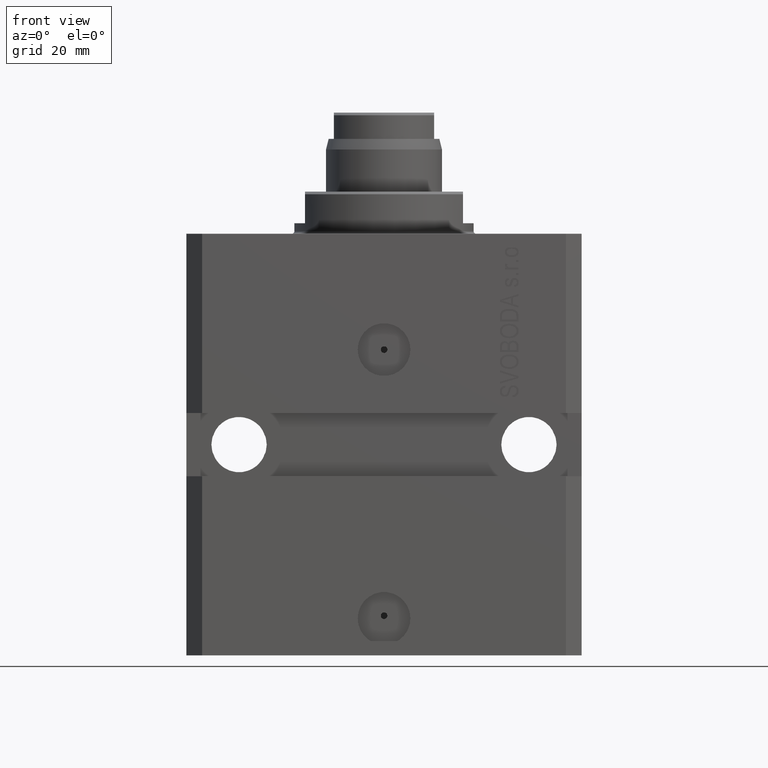
[diagram: clean part render]
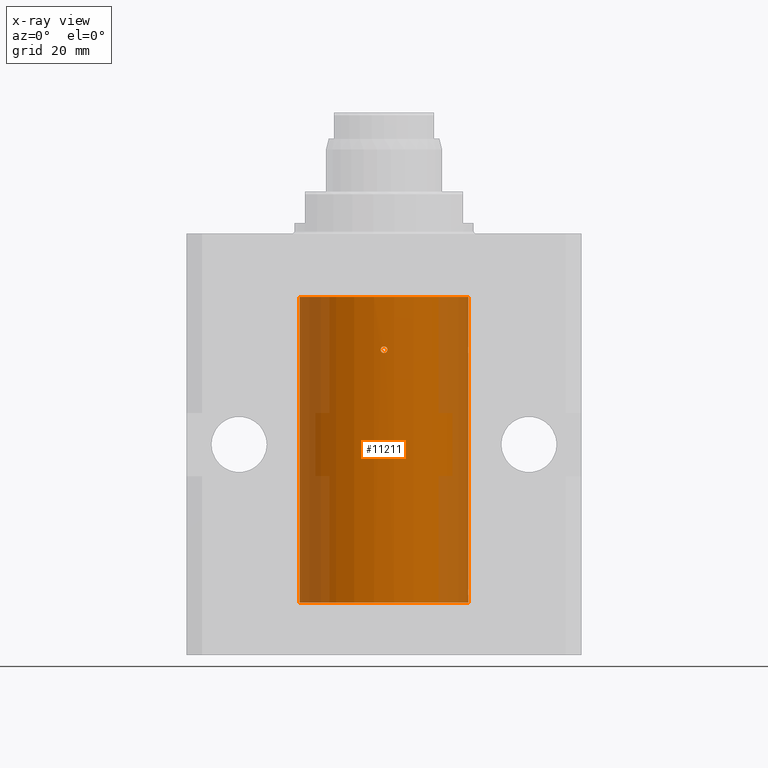
[diagram: x-ray — body ghosted, one internal face saturated and labeled with its STEP entity id]
A machine part, front view, then the same camera in x-ray: the body is ghosted and one INTERNAL B-rep face — a face not visible from any outside direction — is saturated and labeled: STEP entity #11211.
In plain terms, the highlighted cylindrical surface (partial cylindrical patch) has radius 16 mm, axis along (0, 0, 1).
Its self-contained STEP definition (entity closure, byte-faithful):
#355 = CARTESIAN_POINT ( 'NONE',  ( 16.00000000000000000, 6.512442293616765687E-16, -22.62500000000000000 ) ) ;
#490 = LINE ( 'NONE', #27708, #11838 ) ;
#1217 = CARTESIAN_POINT ( 'NONE',  ( 15.98778830858101507, -0.6250000000002121636, -22.00000000000000000 ) ) ;
#1373 = EDGE_CURVE ( 'NONE', #11343, #28451, #29028, .T. ) ;
#1651 = CARTESIAN_POINT ( 'NONE',  ( 15.99071289786271599, -0.5571474671815412893, -21.67319665488819425 ) ) ;
#1946 = ORIENTED_EDGE ( 'NONE', *, *, #40736, .F. ) ;
#2426 = CARTESIAN_POINT ( 'NONE',  ( 15.98778830858101685, -0.6250000000001221245, -68.00000000000000000 ) ) ;
#2802 = CIRCLE ( 'NONE', #34577, 16.00000000000000000 ) ;
#2966 = VERTEX_POINT ( 'NONE', #37809 ) ;
#3079 = CARTESIAN_POINT ( 'NONE',  ( 0.3261757727946462126, -15.99709188868944665, -22.55754407379585302 ) ) ;
#3298 = CARTESIAN_POINT ( 'NONE',  ( 0.5570815292660692419, -15.99071604712191963, -22.32696513381955583 ) ) ;
#3402 = ORIENTED_EDGE ( 'NONE', *, *, #15366, .F. ) ;
#3583 = DIRECTION ( 'NONE',  ( -0.000000000000000000, -0.000000000000000000, 1.000000000000000000 ) ) ;
#3662 = CARTESIAN_POINT ( 'NONE',  ( 15.99070553365076641, -0.5573460204200235690, -22.32646897863008206 ) ) ;
#4092 = CARTESIAN_POINT ( 'NONE',  ( 15.98778830858101685, -0.6250000000002121636, -22.16481193282333351 ) ) ;
#4586 = DIRECTION ( 'NONE',  ( -0.000000000000000000, -0.000000000000000000, 1.000000000000000000 ) ) ;
#4974 = CARTESIAN_POINT ( 'NONE',  ( 15.98778830858102040, -0.6250000000002122746, -21.83501479319281913 ) ) ;
#5055 = DIRECTION ( 'NONE',  ( 1.000000000000000000, 0.000000000000000000, 0.000000000000000000 ) ) ;
#5314 = B_SPLINE_CURVE_WITH_KNOTS ( 'NONE', 3,
 ( #6646, #9082, #26765, #6423, #43610, #40276, #3079, #3298, #19924, #33399 ),
 .UNSPECIFIED., .F., .F.,
 ( 4, 2, 2, 2, 4 ),
 ( 0.001954221313082809587, 0.002442665727494955884, 0.002931110141907101747, 0.003419554556319247610, 0.003907998970731393906 ),
 .UNSPECIFIED. ) ;
#5397 = CARTESIAN_POINT ( 'NONE',  ( -16.00000000000000000, 1.959434878635764737E-15, -70.00000000000000000 ) ) ;
#5921 = CARTESIAN_POINT ( 'NONE',  ( 0.6250000000000021094, -15.98778830858102040, -21.91740113885281360 ) ) ;
#6281 = CARTESIAN_POINT ( 'NONE',  ( 15.98778830858101507, -0.6250000000002121636, -22.00000000000000000 ) ) ;
#6423 = CARTESIAN_POINT ( 'NONE',  ( -0.3270951065626570009, -15.99707098610709011, -22.55695022494792568 ) ) ;
#6646 = CARTESIAN_POINT ( 'NONE',  ( -0.6250000000034292569, -15.98778830858088540, -21.99999999999968026 ) ) ;
#7154 = EDGE_CURVE ( 'NONE', #30750, #36903, #35780, .T. ) ;
#8337 = AXIS2_PLACEMENT_3D ( 'NONE', #24323, #27645, #37602 ) ;
#9082 = CARTESIAN_POINT ( 'NONE',  ( -0.6250000000001380007, -15.98778830858101685, -22.16313442089298746 ) ) ;
#9166 = CARTESIAN_POINT ( 'NONE',  ( 15.99071289786271954, -0.5571474671814620194, -67.67319665488822977 ) ) ;
#9309 = CARTESIAN_POINT ( 'NONE',  ( -0.6250000000034292569, -15.98778830858088540, -21.99999999999968026 ) ) ;
#9916 = B_SPLINE_CURVE_WITH_KNOTS ( 'NONE', 3,
 ( #18490, #18055, #42618, #1651, #4974, #1217 ),
 .UNSPECIFIED., .F., .F.,
 ( 4, 2, 4 ),
 ( 0.001954221322144344530, 0.002442922366142055192, 0.002931623410139766288 ),
 .UNSPECIFIED. ) ;
#9965 = CARTESIAN_POINT ( 'NONE',  ( 16.00000000000000000, -0.1650734421240358518, -68.62500000000004263 ) ) ;
#10331 = CARTESIAN_POINT ( 'NONE',  ( 15.98778830858101507, -0.6250000000002121636, -22.00000000000000000 ) ) ;
#11211 = ADVANCED_FACE ( 'NONE', ( #38162, #28194 ), #27549, .F. ) ;
#11343 = VERTEX_POINT ( 'NONE', #5397 ) ;
#11404 = DIRECTION ( 'NONE',  ( -0.000000000000000000, -0.000000000000000000, 1.000000000000000000 ) ) ;
#11473 = CARTESIAN_POINT ( 'NONE',  ( 0.6250000000000021094, -15.98778830858102040, -22.00000000000000000 ) ) ;
#11530 = AXIS2_PLACEMENT_3D ( 'NONE', #34836, #11404, #41061 ) ;
#11838 = VECTOR ( 'NONE', #3583, 1000.000000000000000 ) ;
#12244 = DIRECTION ( 'NONE',  ( -0.000000000000000000, -0.000000000000000000, 1.000000000000000000 ) ) ;
#12359 = CARTESIAN_POINT ( 'NONE',  ( -0.3834783201270310360, -15.99551040109984257, -21.49962188967067434 ) ) ;
#12877 = VERTEX_POINT ( 'NONE', #16314 ) ;
#12937 = EDGE_CURVE ( 'NONE', #29767, #27472, #23827, .T. ) ;
#13521 = CARTESIAN_POINT ( 'NONE',  ( 16.00000000000000000, -1.835653844722709729E-15, -68.62500000000000000 ) ) ;
#15366 = EDGE_CURVE ( 'NONE', #26508, #27472, #31951, .T. ) ;
#15372 = CARTESIAN_POINT ( 'NONE',  ( 15.98778830858102040, -0.6250000000001221245, -67.83501479319284044 ) ) ;
#16096 = CARTESIAN_POINT ( 'NONE',  ( -0.3146006623915329481, -15.99708581762409842, -21.45377794364939561 ) ) ;
#16314 = CARTESIAN_POINT ( 'NONE',  ( 16.00000000000000000, 0.000000000000000000, -70.00000000000000000 ) ) ;
#17128 = ORIENTED_EDGE ( 'NONE', *, *, #23899, .T. ) ;
#17184 = CARTESIAN_POINT ( 'NONE',  ( 16.00000000000000000, -0.1650734421240521166, -22.62500000000005684 ) ) ;
#18055 = CARTESIAN_POINT ( 'NONE',  ( 16.00000000000000355, -0.1632201307032165871, -21.37499999999979039 ) ) ;
#18069 = VECTOR ( 'NONE', #18907, 1000.000000000000000 ) ;
#18128 = EDGE_LOOP ( 'NONE', ( #28429, #20859, #20395, #19299, #30375, #38260, #3402, #24992, #18945, #1946 ) ) ;
#18490 = CARTESIAN_POINT ( 'NONE',  ( 16.00000000000013145, 3.665532684555111376E-13, -21.37499999999658229 ) ) ;
#18907 = DIRECTION ( 'NONE',  ( -0.000000000000000000, -0.000000000000000000, 1.000000000000000000 ) ) ;
#18945 = ORIENTED_EDGE ( 'NONE', *, *, #23860, .T. ) ;
#19299 = ORIENTED_EDGE ( 'NONE', *, *, #22076, .F. ) ;
#19342 = CARTESIAN_POINT ( 'NONE',  ( 16.00000000000013145, 3.665532692826917502E-13, -67.37499999999657518 ) ) ;
#19692 = CARTESIAN_POINT ( 'NONE',  ( 15.99707785788560521, -0.3267997233067475582, -68.55715215276643448 ) ) ;
#19924 = CARTESIAN_POINT ( 'NONE',  ( 0.6250000000000021094, -15.98778830858102040, -22.16516021842175732 ) ) ;
#20395 = ORIENTED_EDGE ( 'NONE', *, *, #42139, .T. ) ;
#20859 = ORIENTED_EDGE ( 'NONE', *, *, #1373, .T. ) ;
#21287 = EDGE_LOOP ( 'NONE', ( #35516, #17128 ) ) ;
#21355 = CARTESIAN_POINT ( 'NONE',  ( 16.00000000000000000, 0.000000000000000000, -70.00000000000000000 ) ) ;
#21501 = B_SPLINE_CURVE_WITH_KNOTS ( 'NONE', 3,
 ( #19342, #38815, #36379, #9166, #15372, #28630 ),
 .UNSPECIFIED., .F., .F.,
 ( 4, 2, 4 ),
 ( 0.001954221322144537518, 0.002442922366142198307, 0.002931623410139858662 ),
 .UNSPECIFIED. ) ;
#21504 = CARTESIAN_POINT ( 'NONE',  ( 16.00000000000000000, 0.000000000000000000, -12.00000000000000000 ) ) ;
#22062 = CARTESIAN_POINT ( 'NONE',  ( 0.4995337308757449302, -15.99230423105820265, -21.61562946359011050 ) ) ;
#22076 = EDGE_CURVE ( 'NONE', #33883, #34923, #35114, .T. ) ;
#22727 = CARTESIAN_POINT ( 'NONE',  ( 0.3265185412710906454, -15.99708410649345147, -21.44267668954471162 ) ) ;
#23273 = B_SPLINE_CURVE_WITH_KNOTS ( 'NONE', 3,
 ( #2426, #40059, #36509, #19692, #9965, #13521 ),
 .UNSPECIFIED., .F., .F.,
 ( 4, 2, 4 ),
 ( 0.002931623410139858662, 0.003419811200989293816, 0.003907998991838729404 ),
 .UNSPECIFIED. ) ;
#23827 = B_SPLINE_CURVE_WITH_KNOTS ( 'NONE', 3,
 ( #10331, #4092, #3662, #28373, #17184, #355 ),
 .UNSPECIFIED., .F., .F.,
 ( 4, 2, 4 ),
 ( 0.002931623410139766288, 0.003419811200989250014, 0.003907998991838733741 ),
 .UNSPECIFIED. ) ;
#23860 = EDGE_CURVE ( 'NONE', #30387, #2966, #23273, .T. ) ;
#23899 = EDGE_CURVE ( 'NONE', #36903, #30750, #5314, .T. ) ;
#24323 = CARTESIAN_POINT ( 'NONE',  ( 0.000000000000000000, 0.000000000000000000, -12.00000000000000000 ) ) ;
#24992 = ORIENTED_EDGE ( 'NONE', *, *, #28085, .T. ) ;
#25377 = CARTESIAN_POINT ( 'NONE',  ( 0.5459766766732054855, -15.99071278571674881, -21.68496241814480641 ) ) ;
#26508 = VERTEX_POINT ( 'NONE', #39859 ) ;
#26691 = EDGE_CURVE ( 'NONE', #11343, #12877, #2802, .T. ) ;
#26765 = CARTESIAN_POINT ( 'NONE',  ( -0.5574097071831426442, -15.99070247867880745, -22.32631147718825915 ) ) ;
#27472 = VERTEX_POINT ( 'NONE', #29832 ) ;
#27549 = CYLINDRICAL_SURFACE ( 'NONE', #11530, 16.00000000000000000 ) ;
#27645 = DIRECTION ( 'NONE',  ( 0.000000000000000000, 0.000000000000000000, 1.000000000000000000 ) ) ;
#27708 = CARTESIAN_POINT ( 'NONE',  ( 16.00000000000000000, 0.000000000000000000, -70.00000000000000000 ) ) ;
#28073 = CARTESIAN_POINT ( 'NONE',  ( 0.000000000000000000, 0.000000000000000000, -70.00000000000000000 ) ) ;
#28085 = EDGE_CURVE ( 'NONE', #26508, #30387, #21501, .T. ) ;
#28194 = FACE_OUTER_BOUND ( 'NONE', #18128, .T. ) ;
#28373 = CARTESIAN_POINT ( 'NONE',  ( 15.99707785788560521, -0.3267997233067821417, -22.55715215276647356 ) ) ;
#28429 = ORIENTED_EDGE ( 'NONE', *, *, #26691, .F. ) ;
#28451 = VERTEX_POINT ( 'NONE', #40693 ) ;
#28630 = CARTESIAN_POINT ( 'NONE',  ( 15.98778830858101685, -0.6250000000001221245, -68.00000000000000000 ) ) ;
#28910 = CARTESIAN_POINT ( 'NONE',  ( -0.1632473553834393465, -15.99934619083441945, -21.39116306568885051 ) ) ;
#29028 = LINE ( 'NONE', #42557, #43416 ) ;
#29767 = VERTEX_POINT ( 'NONE', #6281 ) ;
#29832 = CARTESIAN_POINT ( 'NONE',  ( 16.00000000000000000, 6.512442293616765687E-16, -22.62500000000000000 ) ) ;
#30375 = ORIENTED_EDGE ( 'NONE', *, *, #36626, .T. ) ;
#30387 = VERTEX_POINT ( 'NONE', #35597 ) ;
#30750 = VERTEX_POINT ( 'NONE', #42424 ) ;
#30933 = CARTESIAN_POINT ( 'NONE',  ( 16.00000000000000000, 0.000000000000000000, -70.00000000000000000 ) ) ;
#31951 = LINE ( 'NONE', #21355, #18069 ) ;
#33399 = CARTESIAN_POINT ( 'NONE',  ( 0.6250000000000021094, -15.98778830858102040, -22.00000000000000000 ) ) ;
#33883 = VERTEX_POINT ( 'NONE', #36631 ) ;
#34577 = AXIS2_PLACEMENT_3D ( 'NONE', #28073, #41373, #5055 ) ;
#34836 = CARTESIAN_POINT ( 'NONE',  ( 0.000000000000000000, 0.000000000000000000, -70.00000000000000000 ) ) ;
#34923 = VERTEX_POINT ( 'NONE', #21504 ) ;
#35114 = LINE ( 'NONE', #30933, #37075 ) ;
#35182 = CIRCLE ( 'NONE', #8337, 16.00000000000000000 ) ;
#35516 = ORIENTED_EDGE ( 'NONE', *, *, #7154, .T. ) ;
#35597 = CARTESIAN_POINT ( 'NONE',  ( 15.98778830858101685, -0.6250000000001221245, -68.00000000000000000 ) ) ;
#35776 = CARTESIAN_POINT ( 'NONE',  ( -0.6250000000034292569, -15.98778830858088540, -21.99999999999968026 ) ) ;
#35780 = B_SPLINE_CURVE_WITH_KNOTS ( 'NONE', 3,
 ( #11473, #5921, #43109, #25377, #22062, #22727, #35999, #39332, #28910, #16096, #12359, #38886, #36228, #35776 ),
 .UNSPECIFIED., .F., .F.,
 ( 4, 2, 2, 2, 2, 2, 4 ),
 ( 0.000000000000000000, 0.0002442776641353475121, 0.0004885553282706950242, 0.0009771106565413974210, 0.001221388320676748511, 0.001465665984812099818, 0.001954221313082809587 ),
 .UNSPECIFIED. ) ;
#35999 = CARTESIAN_POINT ( 'NONE',  ( 0.1632985437550948382, -15.99999773299414940, -21.37505803535338345 ) ) ;
#36228 = CARTESIAN_POINT ( 'NONE',  ( -0.6249999999998592237, -15.98778830858102751, -21.83682853524271295 ) ) ;
#36379 = CARTESIAN_POINT ( 'NONE',  ( 15.99708487730508821, -0.3264777333248483626, -67.44266166809920549 ) ) ;
#36509 = CARTESIAN_POINT ( 'NONE',  ( 15.99070553365076996, -0.5573460204199470747, -68.32646897863006075 ) ) ;
#36626 = EDGE_CURVE ( 'NONE', #33883, #29767, #9916, .T. ) ;
#36631 = CARTESIAN_POINT ( 'NONE',  ( 16.00000000000013145, 3.665532684555111376E-13, -21.37499999999658229 ) ) ;
#36903 = VERTEX_POINT ( 'NONE', #9309 ) ;
#37075 = VECTOR ( 'NONE', #4586, 1000.000000000000000 ) ;
#37602 = DIRECTION ( 'NONE',  ( 1.000000000000000000, 0.000000000000000000, 0.000000000000000000 ) ) ;
#37809 = CARTESIAN_POINT ( 'NONE',  ( 16.00000000000000000, -1.835653844722709729E-15, -68.62500000000000000 ) ) ;
#38162 = FACE_BOUND ( 'NONE', #21287, .T. ) ;
#38260 = ORIENTED_EDGE ( 'NONE', *, *, #12937, .T. ) ;
#38815 = CARTESIAN_POINT ( 'NONE',  ( 16.00000000000000355, -0.1632201307031984627, -67.37499999999981526 ) ) ;
#38886 = CARTESIAN_POINT ( 'NONE',  ( -0.5585615262064563824, -15.99067364047694184, -21.67462402876256178 ) ) ;
#39332 = CARTESIAN_POINT ( 'NONE',  ( -0.08131586293866362170, -16.00000113118705869, -21.37497104160944517 ) ) ;
#39859 = CARTESIAN_POINT ( 'NONE',  ( 16.00000000000013145, 3.665532692826917502E-13, -67.37499999999657518 ) ) ;
#40059 = CARTESIAN_POINT ( 'NONE',  ( 15.98778830858102040, -0.6250000000001221245, -68.16481193282331219 ) ) ;
#40276 = CARTESIAN_POINT ( 'NONE',  ( 0.1643567559725038207, -16.00000534779674055, -22.62513690364380281 ) ) ;
#40693 = CARTESIAN_POINT ( 'NONE',  ( -16.00000000000000000, 1.959434878635764737E-15, -12.00000000000000000 ) ) ;
#40736 = EDGE_CURVE ( 'NONE', #12877, #2966, #490, .T. ) ;
#41061 = DIRECTION ( 'NONE',  ( 1.000000000000000000, 0.000000000000000000, 0.000000000000000000 ) ) ;
#41373 = DIRECTION ( 'NONE',  ( 0.000000000000000000, 0.000000000000000000, 1.000000000000000000 ) ) ;
#42139 = EDGE_CURVE ( 'NONE', #28451, #34923, #35182, .T. ) ;
#42424 = CARTESIAN_POINT ( 'NONE',  ( 0.6250000000000021094, -15.98778830858102040, -22.00000000000000000 ) ) ;
#42557 = CARTESIAN_POINT ( 'NONE',  ( -16.00000000000000000, 1.959434878635764737E-15, -70.00000000000000000 ) ) ;
#42618 = CARTESIAN_POINT ( 'NONE',  ( 15.99708487730508466, -0.3264777333248920499, -21.44266166809915930 ) ) ;
#43109 = CARTESIAN_POINT ( 'NONE',  ( 0.6087347191286167636, -15.98844670280648650, -21.83635021790517072 ) ) ;
#43416 = VECTOR ( 'NONE', #12244, 1000.000000000000000 ) ;
#43610 = CARTESIAN_POINT ( 'NONE',  ( -0.1653963197027900900, -15.99999463531743693, -22.62486266407902491 ) ) ;